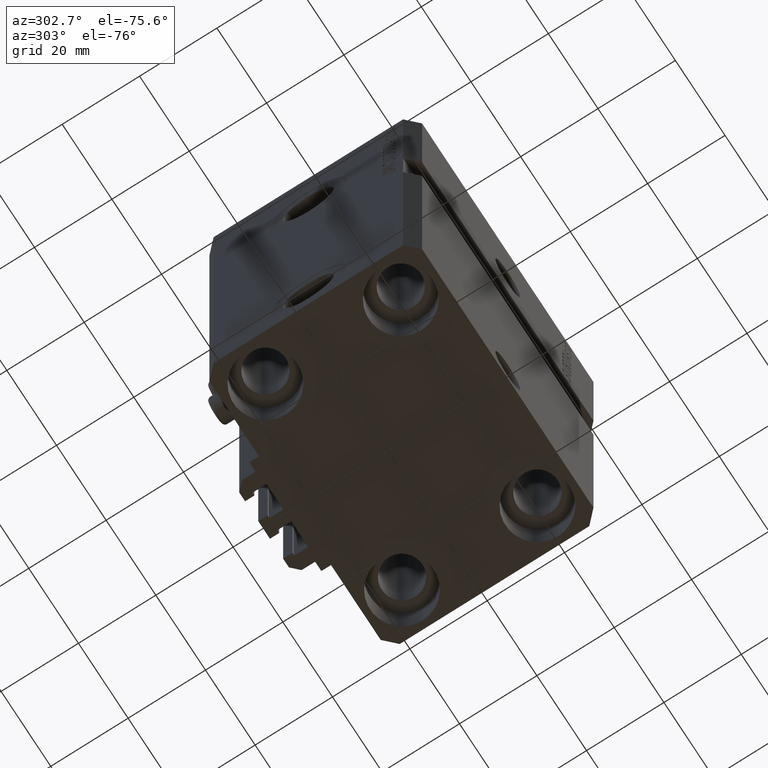
[diagram: clean part render]
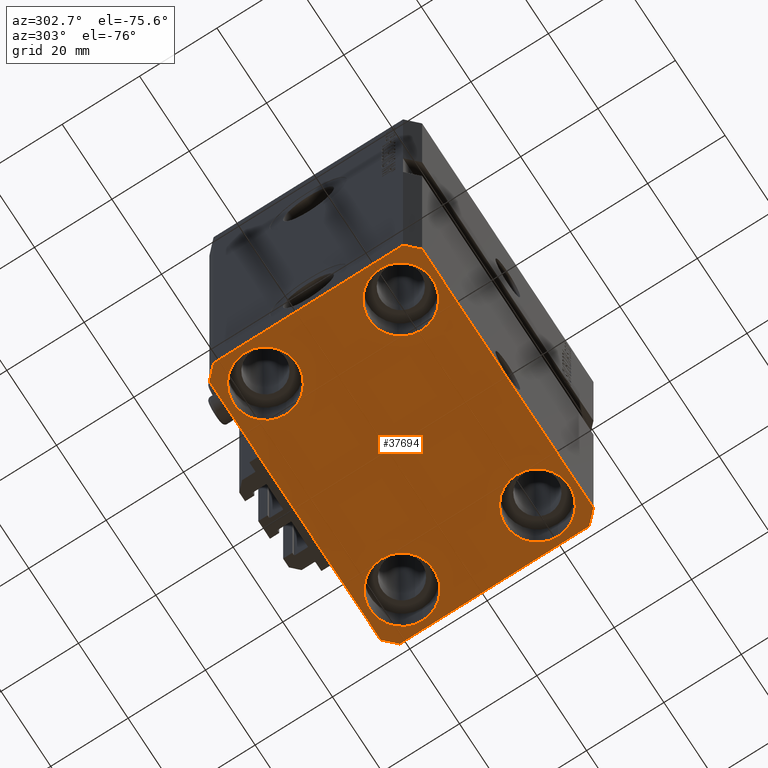
[diagram: same view with one face highlighted and labeled with its STEP entity id]
A machine part, auxiliary view. The second image highlights one B-rep face of the part: STEP entity #37694.
In plain terms, the highlighted planar face has unit normal (0, 0, 1).
Its self-contained STEP definition (entity closure, byte-faithful):
#665 = EDGE_CURVE ( 'NONE', #15666, #19644, #34130, .T. ) ;
#874 = CARTESIAN_POINT ( 'NONE',  ( 34.50000000000056843, 27.50000000000000000, -110.0000000000000000 ) ) ;
#1133 = VERTEX_POINT ( 'NONE', #35585 ) ;
#1137 = EDGE_CURVE ( 'NONE', #7861, #26744, #11428, .T. ) ;
#1858 = ORIENTED_EDGE ( 'NONE', *, *, #29661, .F. ) ;
#1999 = DIRECTION ( 'NONE',  ( 1.000000000000000000, 0.000000000000000000, 0.000000000000000000 ) ) ;
#2076 = DIRECTION ( 'NONE',  ( -0.000000000000000000, -0.000000000000000000, 1.000000000000000000 ) ) ;
#2411 = DIRECTION ( 'NONE',  ( 1.000000000000000000, 0.000000000000000000, 0.000000000000000000 ) ) ;
#2550 = ORIENTED_EDGE ( 'NONE', *, *, #32734, .T. ) ;
#2699 = LINE ( 'NONE', #41773, #43012 ) ;
#3921 = AXIS2_PLACEMENT_3D ( 'NONE', #16293, #19609, #33582 ) ;
#4304 = EDGE_LOOP ( 'NONE', ( #37387, #19776 ) ) ;
#4713 = DIRECTION ( 'NONE',  ( -0.000000000000000000, -0.000000000000000000, 1.000000000000000000 ) ) ;
#4819 = EDGE_CURVE ( 'NONE', #1133, #37224, #26418, .T. ) ;
#5390 = EDGE_CURVE ( 'NONE', #5881, #32636, #42460, .T. ) ;
#5420 = DIRECTION ( 'NONE',  ( 1.000000000000000000, 0.000000000000000000, 0.000000000000000000 ) ) ;
#5429 = CARTESIAN_POINT ( 'NONE',  ( -34.49999999999999289, 27.50000000000000000, -110.0000000000000000 ) ) ;
#5648 = VERTEX_POINT ( 'NONE', #28343 ) ;
#5881 = VERTEX_POINT ( 'NONE', #29262 ) ;
#6820 = EDGE_CURVE ( 'NONE', #30454, #27942, #29614, .T. ) ;
#7297 = CIRCLE ( 'NONE', #20181, 8.250000000000000000 ) ;
#7655 = VECTOR ( 'NONE', #11194, 1000.000000000000000 ) ;
#7861 = VERTEX_POINT ( 'NONE', #874 ) ;
#8160 = DIRECTION ( 'NONE',  ( 1.000000000000000000, 0.000000000000000000, 0.000000000000000000 ) ) ;
#9035 = CARTESIAN_POINT ( 'NONE',  ( -27.50000000000000355, 17.50000000000000000, -110.0000000000000000 ) ) ;
#9041 = VERTEX_POINT ( 'NONE', #30413 ) ;
#9819 = CARTESIAN_POINT ( 'NONE',  ( -35.75000000000000711, -17.50000000000000000, -110.0000000000000000 ) ) ;
#10886 = ORIENTED_EDGE ( 'NONE', *, *, #1137, .F. ) ;
#10903 = DIRECTION ( 'NONE',  ( 0.000000000000000000, 0.000000000000000000, 1.000000000000000000 ) ) ;
#11194 = DIRECTION ( 'NONE',  ( -1.000000000000000000, 0.000000000000000000, 0.000000000000000000 ) ) ;
#11391 = DIRECTION ( 'NONE',  ( 1.000000000000000000, 0.000000000000000000, 0.000000000000000000 ) ) ;
#11428 = LINE ( 'NONE', #42916, #7655 ) ;
#12181 = CARTESIAN_POINT ( 'NONE',  ( -34.49999999999998579, -27.49999999999999645, -110.0000000000000000 ) ) ;
#12595 = DIRECTION ( 'NONE',  ( -0.000000000000000000, -0.000000000000000000, 1.000000000000000000 ) ) ;
#13499 = ORIENTED_EDGE ( 'NONE', *, *, #5390, .T. ) ;
#13621 = DIRECTION ( 'NONE',  ( -0.000000000000000000, -0.000000000000000000, 1.000000000000000000 ) ) ;
#14671 = EDGE_LOOP ( 'NONE', ( #2550, #38833 ) ) ;
#14886 = CARTESIAN_POINT ( 'NONE',  ( 34.49999999999999289, -27.49999999999999645, -110.0000000000000000 ) ) ;
#15131 = VECTOR ( 'NONE', #29579, 1000.000000000000000 ) ;
#15410 = CARTESIAN_POINT ( 'NONE',  ( 27.49999999999999645, 17.50000000000001066, -110.0000000000000000 ) ) ;
#15473 = EDGE_CURVE ( 'NONE', #26744, #32077, #36204, .T. ) ;
#15666 = VERTEX_POINT ( 'NONE', #46570 ) ;
#15841 = CARTESIAN_POINT ( 'NONE',  ( 37.49999999999999289, -24.50000000000000000, -110.0000000000000000 ) ) ;
#16293 = CARTESIAN_POINT ( 'NONE',  ( -27.50000000000000355, 17.50000000000000000, -110.0000000000000000 ) ) ;
#16302 = DIRECTION ( 'NONE',  ( 1.000000000000000000, 0.000000000000000000, 0.000000000000000000 ) ) ;
#16374 = DIRECTION ( 'NONE',  ( 1.000000000000000000, 0.000000000000000000, 0.000000000000000000 ) ) ;
#16384 = CARTESIAN_POINT ( 'NONE',  ( 27.50000000000000355, -17.50000000000000000, -110.0000000000000000 ) ) ;
#16532 = DIRECTION ( 'NONE',  ( -0.7071067811865471286, -0.7071067811865479058, 0.000000000000000000 ) ) ;
#16737 = AXIS2_PLACEMENT_3D ( 'NONE', #26729, #4713, #16302 ) ;
#16939 = DIRECTION ( 'NONE',  ( 1.000000000000000000, 0.000000000000000000, 0.000000000000000000 ) ) ;
#17400 = CARTESIAN_POINT ( 'NONE',  ( 27.49999999999999645, 17.50000000000001066, -110.0000000000000000 ) ) ;
#17443 = EDGE_CURVE ( 'NONE', #9041, #5648, #7297, .T. ) ;
#17482 = AXIS2_PLACEMENT_3D ( 'NONE', #15410, #2076, #11391 ) ;
#17757 = VERTEX_POINT ( 'NONE', #35005 ) ;
#18159 = LINE ( 'NONE', #18405, #32332 ) ;
#18277 = CIRCLE ( 'NONE', #3921, 8.250000000000000000 ) ;
#18405 = CARTESIAN_POINT ( 'NONE',  ( -37.49999999999999289, 24.50000000000000000, -110.0000000000000000 ) ) ;
#18942 = CARTESIAN_POINT ( 'NONE',  ( 19.25000000000000000, 17.50000000000001066, -110.0000000000000000 ) ) ;
#19169 = ORIENTED_EDGE ( 'NONE', *, *, #37217, .T. ) ;
#19609 = DIRECTION ( 'NONE',  ( -0.000000000000000000, -0.000000000000000000, 1.000000000000000000 ) ) ;
#19644 = VERTEX_POINT ( 'NONE', #18942 ) ;
#19758 = EDGE_CURVE ( 'NONE', #32077, #1133, #18159, .T. ) ;
#19776 = ORIENTED_EDGE ( 'NONE', *, *, #17443, .T. ) ;
#20157 = CARTESIAN_POINT ( 'NONE',  ( -19.25000000000000355, -17.50000000000000000, -110.0000000000000000 ) ) ;
#20181 = AXIS2_PLACEMENT_3D ( 'NONE', #9035, #12595, #16374 ) ;
#20303 = DIRECTION ( 'NONE',  ( -0.000000000000000000, -0.000000000000000000, 1.000000000000000000 ) ) ;
#20389 = DIRECTION ( 'NONE',  ( -0.000000000000000000, -0.000000000000000000, 1.000000000000000000 ) ) ;
#21274 = CIRCLE ( 'NONE', #40957, 8.249999999999992895 ) ;
#21303 = EDGE_LOOP ( 'NONE', ( #33419, #13499 ) ) ;
#21598 = VECTOR ( 'NONE', #16532, 1000.000000000000000 ) ;
#21711 = EDGE_CURVE ( 'NONE', #32636, #5881, #44475, .T. ) ;
#22453 = CARTESIAN_POINT ( 'NONE',  ( -34.49999999999999289, 27.50000000000000000, -110.0000000000000000 ) ) ;
#22471 = ORIENTED_EDGE ( 'NONE', *, *, #19758, .F. ) ;
#22944 = ORIENTED_EDGE ( 'NONE', *, *, #24377, .F. ) ;
#23128 = EDGE_CURVE ( 'NONE', #37224, #34920, #2699, .T. ) ;
#24377 = EDGE_CURVE ( 'NONE', #38590, #7861, #38396, .T. ) ;
#24634 = FACE_BOUND ( 'NONE', #14671, .T. ) ;
#25333 = DIRECTION ( 'NONE',  ( 1.000000000000000000, 0.000000000000000000, -0.000000000000000000 ) ) ;
#25863 = AXIS2_PLACEMENT_3D ( 'NONE', #40924, #20303, #5420 ) ;
#26183 = DIRECTION ( 'NONE',  ( 0.7071067811865483499, -0.7071067811865466846, 0.000000000000000000 ) ) ;
#26194 = CARTESIAN_POINT ( 'NONE',  ( 19.25000000000000000, -17.50000000000000000, -110.0000000000000000 ) ) ;
#26418 = LINE ( 'NONE', #40857, #27293 ) ;
#26729 = CARTESIAN_POINT ( 'NONE',  ( 27.50000000000000355, -17.50000000000000000, -110.0000000000000000 ) ) ;
#26744 = VERTEX_POINT ( 'NONE', #22453 ) ;
#27293 = VECTOR ( 'NONE', #26183, 1000.000000000000000 ) ;
#27776 = EDGE_LOOP ( 'NONE', ( #19169, #29338 ) ) ;
#27905 = EDGE_CURVE ( 'NONE', #34920, #17757, #41327, .T. ) ;
#27942 = VERTEX_POINT ( 'NONE', #9819 ) ;
#27971 = CARTESIAN_POINT ( 'NONE',  ( 37.50000000000051870, 24.49999999999995381, -110.0000000000000000 ) ) ;
#28343 = CARTESIAN_POINT ( 'NONE',  ( -35.75000000000000711, 17.50000000000000000, -110.0000000000000000 ) ) ;
#28608 = AXIS2_PLACEMENT_3D ( 'NONE', #16384, #20389, #2411 ) ;
#28886 = CARTESIAN_POINT ( 'NONE',  ( 0.000000000000000000, 0.000000000000000000, -110.0000000000000000 ) ) ;
#29262 = CARTESIAN_POINT ( 'NONE',  ( 35.75000000000000711, -17.50000000000000000, -110.0000000000000000 ) ) ;
#29338 = ORIENTED_EDGE ( 'NONE', *, *, #6820, .T. ) ;
#29579 = DIRECTION ( 'NONE',  ( 1.076236605503979380E-14, 1.000000000000000000, 0.000000000000000000 ) ) ;
#29614 = CIRCLE ( 'NONE', #25863, 8.250000000000000000 ) ;
#29661 = EDGE_CURVE ( 'NONE', #17757, #38590, #33366, .T. ) ;
#30413 = CARTESIAN_POINT ( 'NONE',  ( -19.25000000000000355, 17.50000000000000000, -110.0000000000000000 ) ) ;
#30454 = VERTEX_POINT ( 'NONE', #20157 ) ;
#31031 = ORIENTED_EDGE ( 'NONE', *, *, #15473, .F. ) ;
#32077 = VERTEX_POINT ( 'NONE', #38585 ) ;
#32332 = VECTOR ( 'NONE', #35925, 1000.000000000000000 ) ;
#32426 = FACE_BOUND ( 'NONE', #21303, .T. ) ;
#32636 = VERTEX_POINT ( 'NONE', #26194 ) ;
#32734 = EDGE_CURVE ( 'NONE', #19644, #15666, #21274, .T. ) ;
#32856 = CIRCLE ( 'NONE', #35127, 8.250000000000000000 ) ;
#33282 = DIRECTION ( 'NONE',  ( 0.7071067811865474617, 0.7071067811865474617, 0.000000000000000000 ) ) ;
#33366 = LINE ( 'NONE', #15841, #15131 ) ;
#33419 = ORIENTED_EDGE ( 'NONE', *, *, #21711, .T. ) ;
#33582 = DIRECTION ( 'NONE',  ( 1.000000000000000000, 0.000000000000000000, 0.000000000000000000 ) ) ;
#33726 = DIRECTION ( 'NONE',  ( -0.000000000000000000, -0.000000000000000000, 1.000000000000000000 ) ) ;
#33976 = EDGE_CURVE ( 'NONE', #5648, #9041, #18277, .T. ) ;
#34130 = CIRCLE ( 'NONE', #17482, 8.249999999999992895 ) ;
#34741 = ORIENTED_EDGE ( 'NONE', *, *, #4819, .F. ) ;
#34920 = VERTEX_POINT ( 'NONE', #14886 ) ;
#35005 = CARTESIAN_POINT ( 'NONE',  ( 37.49999999999999289, -24.50000000000000000, -110.0000000000000000 ) ) ;
#35127 = AXIS2_PLACEMENT_3D ( 'NONE', #37979, #33726, #8160 ) ;
#35585 = CARTESIAN_POINT ( 'NONE',  ( -37.49999999999999289, -24.50000000000000000, -110.0000000000000000 ) ) ;
#35925 = DIRECTION ( 'NONE',  ( 0.000000000000000000, -1.000000000000000000, 0.000000000000000000 ) ) ;
#36204 = LINE ( 'NONE', #5429, #21598 ) ;
#36220 = FACE_OUTER_BOUND ( 'NONE', #36960, .T. ) ;
#36960 = EDGE_LOOP ( 'NONE', ( #10886, #22944, #1858, #44483, #42130, #34741, #22471, #31031 ) ) ;
#37217 = EDGE_CURVE ( 'NONE', #27942, #30454, #32856, .T. ) ;
#37224 = VERTEX_POINT ( 'NONE', #12181 ) ;
#37387 = ORIENTED_EDGE ( 'NONE', *, *, #33976, .T. ) ;
#37694 = ADVANCED_FACE ( 'NONE', ( #43084, #32426, #24634, #46862, #36220 ), #39768, .F. ) ;
#37753 = VECTOR ( 'NONE', #33282, 1000.000000000000114 ) ;
#37779 = CARTESIAN_POINT ( 'NONE',  ( 34.49999999999999289, -27.49999999999999645, -110.0000000000000000 ) ) ;
#37979 = CARTESIAN_POINT ( 'NONE',  ( -27.50000000000000355, -17.50000000000000000, -110.0000000000000000 ) ) ;
#38396 = LINE ( 'NONE', #27971, #40004 ) ;
#38585 = CARTESIAN_POINT ( 'NONE',  ( -37.49999999999999289, 24.50000000000000000, -110.0000000000000000 ) ) ;
#38590 = VERTEX_POINT ( 'NONE', #44497 ) ;
#38833 = ORIENTED_EDGE ( 'NONE', *, *, #665, .T. ) ;
#39768 = PLANE ( 'NONE',  #46476 ) ;
#40004 = VECTOR ( 'NONE', #41311, 1000.000000000000114 ) ;
#40857 = CARTESIAN_POINT ( 'NONE',  ( -37.49999999999999289, -24.50000000000000000, -110.0000000000000000 ) ) ;
#40924 = CARTESIAN_POINT ( 'NONE',  ( -27.50000000000000355, -17.50000000000000000, -110.0000000000000000 ) ) ;
#40957 = AXIS2_PLACEMENT_3D ( 'NONE', #17400, #13621, #16939 ) ;
#41311 = DIRECTION ( 'NONE',  ( -0.7071067811865356934, 0.7071067811865594521, 0.000000000000000000 ) ) ;
#41327 = LINE ( 'NONE', #37779, #37753 ) ;
#41773 = CARTESIAN_POINT ( 'NONE',  ( -34.49999999999998579, -27.49999999999999645, -110.0000000000000000 ) ) ;
#42130 = ORIENTED_EDGE ( 'NONE', *, *, #23128, .F. ) ;
#42460 = CIRCLE ( 'NONE', #16737, 8.250000000000000000 ) ;
#42916 = CARTESIAN_POINT ( 'NONE',  ( 34.50000000000056843, 27.50000000000000000, -110.0000000000000000 ) ) ;
#43012 = VECTOR ( 'NONE', #1999, 1000.000000000000000 ) ;
#43084 = FACE_BOUND ( 'NONE', #27776, .T. ) ;
#44475 = CIRCLE ( 'NONE', #28608, 8.250000000000000000 ) ;
#44483 = ORIENTED_EDGE ( 'NONE', *, *, #27905, .F. ) ;
#44497 = CARTESIAN_POINT ( 'NONE',  ( 37.50000000000051870, 24.49999999999995381, -110.0000000000000000 ) ) ;
#46476 = AXIS2_PLACEMENT_3D ( 'NONE', #28886, #10903, #25333 ) ;
#46570 = CARTESIAN_POINT ( 'NONE',  ( 35.74999999999999289, 17.50000000000001066, -110.0000000000000000 ) ) ;
#46862 = FACE_BOUND ( 'NONE', #4304, .T. ) ;